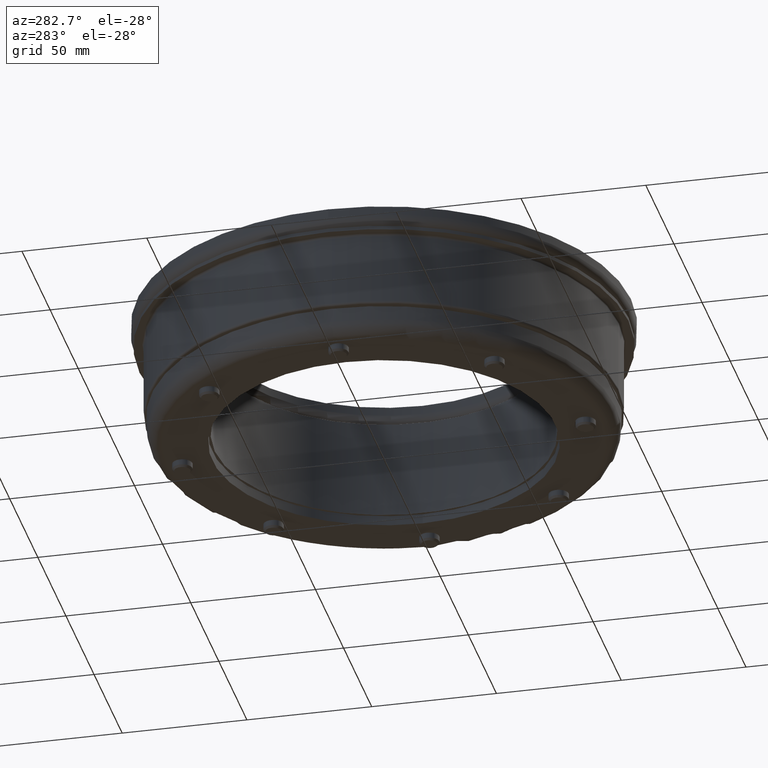
[diagram: clean part render]
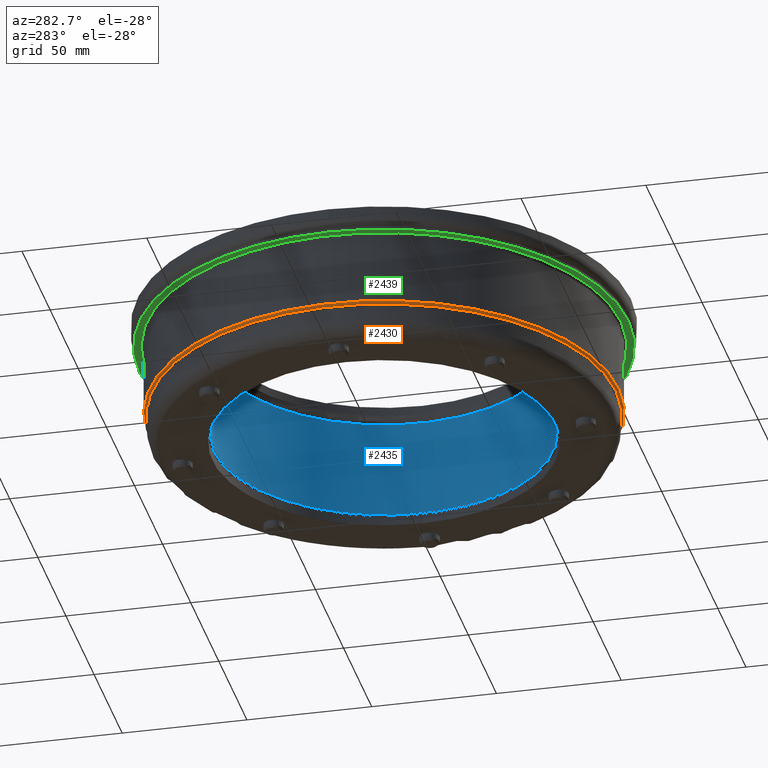
[diagram: same view with three faces highlighted in distinct colors, each labeled with its STEP entity id]
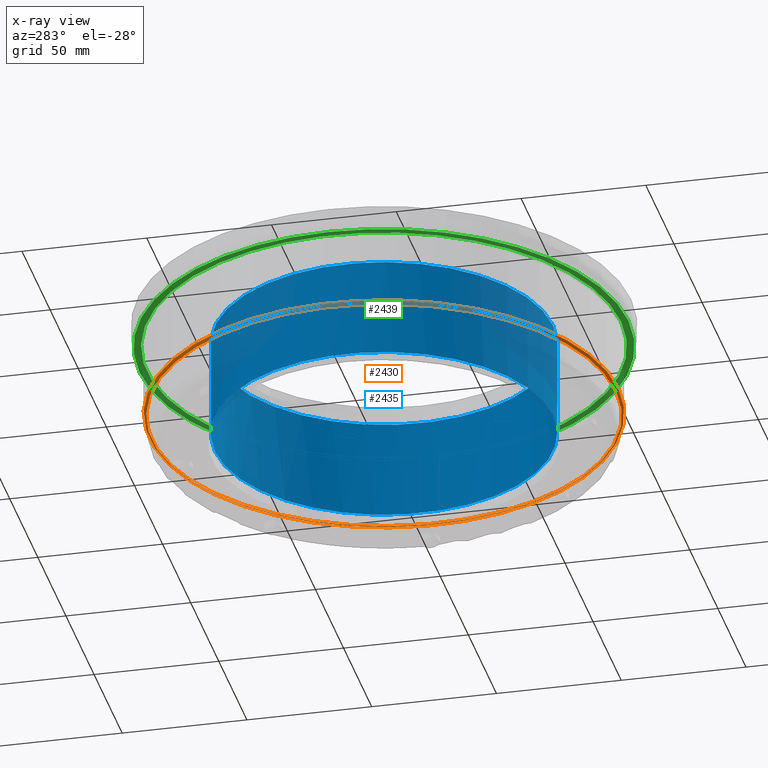
[diagram: x-ray of the same camera — body ghosted, the three highlighted faces saturated]
A machine part, auxiliary view with three faces highlighted in distinct colors.
The next image is the same camera in x-ray (body ghosted, the three faces saturated) — at least one of them is partly hidden behind the body in this view.
Their STEP definitions:

[orange] entity #2430 — the highlighted toroidal blend (fillet) surface has major radius 93 mm and minor (blend) radius 1 mm.
#196=TOROIDAL_SURFACE('',#2767,93.,1.);
#310=FACE_OUTER_BOUND('',#440,.T.);
#440=EDGE_LOOP('',(#1884,#1885,#1886,#1887));
#905=CIRCLE('',#2762,93.);
#909=CIRCLE('',#2768,1.);
#910=CIRCLE('',#2769,94.);
#1152=VERTEX_POINT('',#4166);
#1156=VERTEX_POINT('',#4177);
#1433=EDGE_CURVE('',#1152,#1152,#905,.T.);
#1438=EDGE_CURVE('',#1152,#1156,#909,.T.);
#1439=EDGE_CURVE('',#1156,#1156,#910,.T.);
#1884=ORIENTED_EDGE('',*,*,#1433,.T.);
#1885=ORIENTED_EDGE('',*,*,#1438,.T.);
#1886=ORIENTED_EDGE('',*,*,#1439,.T.);
#1887=ORIENTED_EDGE('',*,*,#1438,.F.);
#2430=ADVANCED_FACE('',(#310),#196,.T.);
#2762=AXIS2_PLACEMENT_3D('',#4167,#3315,#3316);
#2767=AXIS2_PLACEMENT_3D('',#4176,#3326,#3327);
#2768=AXIS2_PLACEMENT_3D('',#4178,#3328,#3329);
#2769=AXIS2_PLACEMENT_3D('',#4179,#3330,#3331);
#3315=DIRECTION('center_axis',(0.,0.,1.));
#3316=DIRECTION('ref_axis',(-1.,0.,0.));
#3326=DIRECTION('center_axis',(0.,0.,-1.));
#3327=DIRECTION('ref_axis',(-1.,0.,0.));
#3328=DIRECTION('center_axis',(-1.22464679914735E-16,-1.,0.));
#3329=DIRECTION('ref_axis',(1.,-1.22464679914735E-16,0.));
#3330=DIRECTION('center_axis',(0.,0.,-1.));
#3331=DIRECTION('ref_axis',(-1.,0.,0.));
#4166=CARTESIAN_POINT('',(93.,1.1944326744383E-14,8.));
#4167=CARTESIAN_POINT('Origin',(-5.55111512312578E-16,5.55111512312578E-16,
8.));
#4176=CARTESIAN_POINT('Origin',(-5.55111512312578E-16,5.55111512312578E-16,
9.));
#4177=CARTESIAN_POINT('',(94.,-1.09565683996725E-14,9.));
#4178=CARTESIAN_POINT('Origin',(93.,-1.08341037197578E-14,9.));
#4179=CARTESIAN_POINT('Origin',(-5.55111512312578E-16,5.55111512312578E-16,
9.));

[blue] entity #2435 — the highlighted cylindrical surface (bore or boss wall) has radius 67.8 mm, axis along (-0, 0, 1).
#226=CYLINDRICAL_SURFACE('',#2791,67.8);
#315=FACE_OUTER_BOUND('',#454,.T.);
#454=EDGE_LOOP('',(#1915,#1916,#1917,#1918,#1919));
#652=LINE('',#4221,#751);
#751=VECTOR('',#3379,67.8);
#927=CIRCLE('',#2790,67.8);
#928=CIRCLE('',#2792,67.8);
#929=CIRCLE('',#2793,67.8);
#1171=VERTEX_POINT('',#4214);
#1172=VERTEX_POINT('',#4218);
#1173=VERTEX_POINT('',#4219);
#1457=EDGE_CURVE('',#1171,#1171,#927,.T.);
#1458=EDGE_CURVE('',#1172,#1173,#928,.T.);
#1459=EDGE_CURVE('',#1172,#1171,#652,.T.);
#1460=EDGE_CURVE('',#1173,#1172,#929,.T.);
#1915=ORIENTED_EDGE('',*,*,#1458,.F.);
#1916=ORIENTED_EDGE('',*,*,#1459,.T.);
#1917=ORIENTED_EDGE('',*,*,#1457,.F.);
#1918=ORIENTED_EDGE('',*,*,#1459,.F.);
#1919=ORIENTED_EDGE('',*,*,#1460,.F.);
#2435=ADVANCED_FACE('',(#315),#226,.F.);
#2790=AXIS2_PLACEMENT_3D('',#4216,#3373,#3374);
#2791=AXIS2_PLACEMENT_3D('',#4217,#3375,#3376);
#2792=AXIS2_PLACEMENT_3D('',#4220,#3377,#3378);
#2793=AXIS2_PLACEMENT_3D('',#4222,#3380,#3381);
#3373=DIRECTION('center_axis',(0.,0.,-1.));
#3374=DIRECTION('ref_axis',(-1.,0.,0.));
#3375=DIRECTION('center_axis',(0.,0.,1.));
#3376=DIRECTION('ref_axis',(-1.,0.,0.));
#3377=DIRECTION('center_axis',(0.,0.,1.));
#3378=DIRECTION('ref_axis',(-1.,0.,0.));
#3379=DIRECTION('',(0.,0.,1.));
#3380=DIRECTION('center_axis',(0.,0.,1.));
#3381=DIRECTION('ref_axis',(-1.,0.,0.));
#4214=CARTESIAN_POINT('',(67.8,-7.74799378590648E-15,39.9));
#4216=CARTESIAN_POINT('Origin',(-5.55111512312578E-16,5.55111512312578E-16,
39.9));
#4217=CARTESIAN_POINT('Origin',(-5.55111512312578E-16,5.55111512312578E-16,
0.));
#4218=CARTESIAN_POINT('',(67.8,8.85821681053163E-15,0.1));
#4219=CARTESIAN_POINT('',(-67.8,-7.74799378590648E-15,0.1));
#4220=CARTESIAN_POINT('Origin',(-5.55111512312578E-16,5.55111512312578E-16,
0.1));
#4221=CARTESIAN_POINT('',(67.8,8.85821681053163E-15,0.));
#4222=CARTESIAN_POINT('Origin',(-5.55111512312578E-16,5.55111512312578E-16,
0.1));

[green] entity #2439 — the highlighted planar face has unit normal (0, -0, -1).
#109=FACE_BOUND('',#476,.T.);
#170=PLANE('',#2809);
#319=FACE_OUTER_BOUND('',#475,.T.);
#475=EDGE_LOOP('',(#1948));
#476=EDGE_LOOP('',(#1949));
#940=CIRCLE('',#2807,95.);
#942=CIRCLE('',#2810,98.);
#1183=VERTEX_POINT('',#4245);
#1184=VERTEX_POINT('',#4249);
#1471=EDGE_CURVE('',#1183,#1183,#940,.T.);
#1473=EDGE_CURVE('',#1184,#1184,#942,.T.);
#1948=ORIENTED_EDGE('',*,*,#1473,.F.);
#1949=ORIENTED_EDGE('',*,*,#1471,.F.);
#2439=ADVANCED_FACE('',(#319,#109),#170,.T.);
#2807=AXIS2_PLACEMENT_3D('',#4246,#3408,#3409);
#2809=AXIS2_PLACEMENT_3D('',#4248,#3412,#3413);
#2810=AXIS2_PLACEMENT_3D('',#4250,#3414,#3415);
#3408=DIRECTION('center_axis',(0.,1.83697019872103E-16,-1.));
#3409=DIRECTION('ref_axis',(-1.,1.95422361566067E-18,3.58985054360551E-34));
#3412=DIRECTION('center_axis',(0.,1.83697019872103E-16,-1.));
#3413=DIRECTION('ref_axis',(-1.,0.,0.));
#3414=DIRECTION('center_axis',(0.,-1.83697019872103E-16,1.));
#3415=DIRECTION('ref_axis',(0.,-1.,-1.83697019872103E-16));
#4245=CARTESIAN_POINT('',(95.,-1.14483813429471E-14,38.5));
#4246=CARTESIAN_POINT('Origin',(-5.55111512312578E-16,3.71414492440472E-16,
38.5));
#4248=CARTESIAN_POINT('Origin',(0.,-95.8,38.5));
#4249=CARTESIAN_POINT('',(-1.20015386316441E-14,98.,38.5));
#4250=CARTESIAN_POINT('Origin',(0.,-7.07233526507597E-15,38.5));